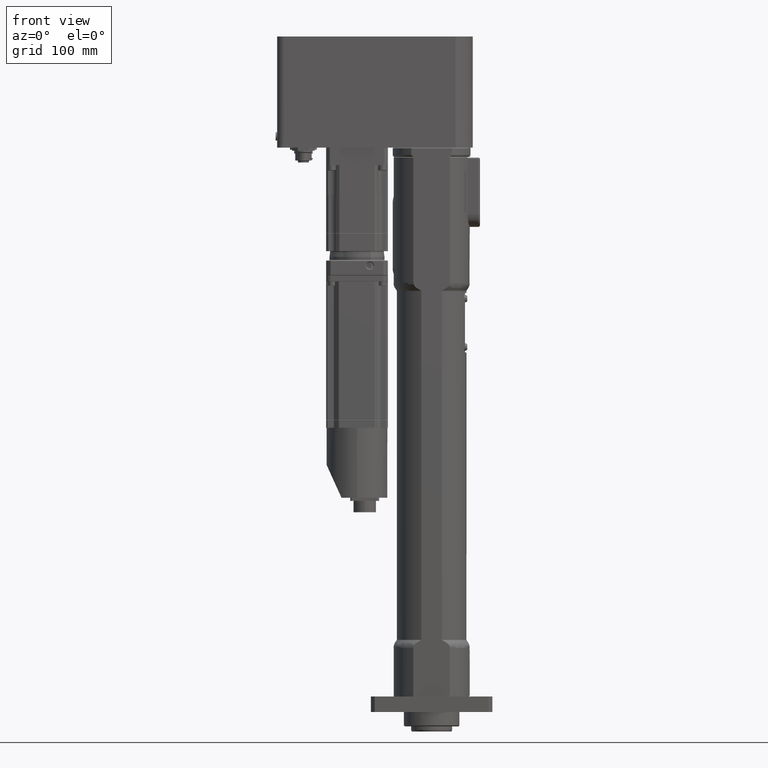
[diagram: clean part render]
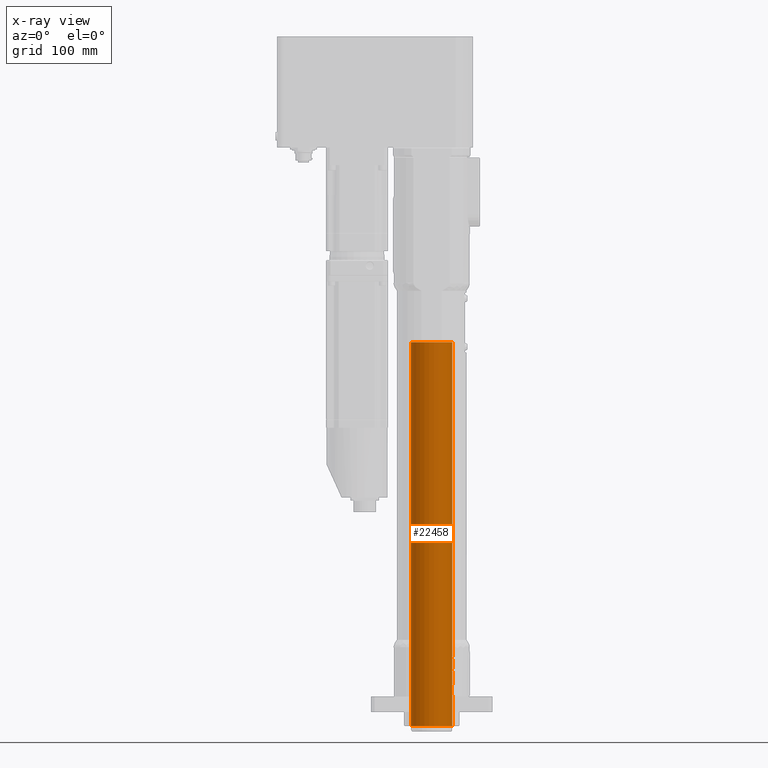
[diagram: x-ray — body ghosted, one internal face saturated and labeled with its STEP entity id]
A machine part, front view, then the same camera in x-ray: the body is ghosted and one INTERNAL B-rep face — a face not visible from any outside direction — is saturated and labeled: STEP entity #22458.
In plain terms, the highlighted cylindrical surface (bore or boss wall) has radius 20 mm, axis along (0, 0, 1).
Its self-contained STEP definition (entity closure, byte-faithful):
#640=B_SPLINE_CURVE_WITH_KNOTS('',3,(#31945,#31946,#31947,#31948,#31949,
#31950,#31951,#31952,#31953,#31954),.UNSPECIFIED.,.F.,.F.,(4,2,2,2,4),(0.,
0.0610897130723132,0.122179426144626,0.183269049775174,0.244358673405721),
 .UNSPECIFIED.);
#641=B_SPLINE_CURVE_WITH_KNOTS('',3,(#31956,#31957,#31958,#31959,#31960,
#31961,#31962,#31963,#31964,#31965),.UNSPECIFIED.,.F.,.F.,(4,2,2,2,4),(0.733076020217163,
0.794165643847711,0.855255267478258,0.916344980550571,0.977434693622885),
 .UNSPECIFIED.);
#642=B_SPLINE_CURVE_WITH_KNOTS('',3,(#31966,#31967,#31968,#31969,#31970,
#31971,#31972,#31973,#31974,#31975,#31976,#31977,#31978,#31979,#31980,#31981,
#31982,#31983),.UNSPECIFIED.,.F.,.F.,(4,2,2,2,2,2,2,2,4),(0.244358673405721,
0.305448297036269,0.366537920666816,0.427627633739129,0.488717346811442,
0.549807059883755,0.610896772956069,0.671986396586616,0.733076020217163),
 .UNSPECIFIED.);
#643=B_SPLINE_CURVE_WITH_KNOTS('',3,(#31992,#31993,#31994,#31995,#31996,
#31997,#31998,#31999,#32000,#32001),.UNSPECIFIED.,.F.,.F.,(4,2,2,2,4),(0.,
0.0610897130723132,0.122179426144626,0.183269049775174,0.244358673405721),
 .UNSPECIFIED.);
#644=B_SPLINE_CURVE_WITH_KNOTS('',3,(#32003,#32004,#32005,#32006,#32007,
#32008,#32009,#32010,#32011,#32012),.UNSPECIFIED.,.F.,.F.,(4,2,2,2,4),(0.733076020217164,
0.794165643847711,0.855255267478258,0.916344980550571,0.977434693622885),
 .UNSPECIFIED.);
#645=B_SPLINE_CURVE_WITH_KNOTS('',3,(#32013,#32014,#32015,#32016,#32017,
#32018,#32019,#32020,#32021,#32022,#32023,#32024,#32025,#32026,#32027,#32028,
#32029,#32030),.UNSPECIFIED.,.F.,.F.,(4,2,2,2,2,2,2,2,4),(0.244358673405721,
0.305448297036269,0.366537920666816,0.427627633739129,0.488717346811442,
0.549807059883756,0.610896772956069,0.671986396586616,0.733076020217164),
 .UNSPECIFIED.);
#1118=CYLINDRICAL_SURFACE('',#23881,20.);
#1440=CIRCLE('',#23882,20.);
#1441=CIRCLE('',#23883,20.);
#1442=CIRCLE('',#23884,20.);
#1443=CIRCLE('',#23885,20.);
#1444=CIRCLE('',#23886,20.);
#1445=CIRCLE('',#23887,20.);
#2361=FACE_OUTER_BOUND('',#3663,.T.);
#3663=EDGE_LOOP('',(#14068,#14069,#14070,#14071,#14072,#14073,#14074,#14075,
#14076,#14077,#14078,#14079,#14080,#14081,#14082,#14083,#14084,#14085,#14086,
#14087,#14088,#14089));
#5119=LINE('',#32036,#6901);
#5120=LINE('',#32040,#6902);
#5121=LINE('',#32043,#6903);
#5122=LINE('',#32044,#6904);
#5123=LINE('',#32046,#6905);
#5124=LINE('',#32051,#6906);
#6901=VECTOR('',#25997,20.);
#6902=VECTOR('',#26000,10.);
#6903=VECTOR('',#26003,20.);
#6904=VECTOR('',#26004,20.);
#6905=VECTOR('',#26005,20.);
#6906=VECTOR('',#26010,10.);
#8687=VERTEX_POINT('',#31942);
#8688=VERTEX_POINT('',#31944);
#8689=VERTEX_POINT('',#31955);
#8692=VERTEX_POINT('',#31989);
#8693=VERTEX_POINT('',#31991);
#8694=VERTEX_POINT('',#32002);
#8695=VERTEX_POINT('',#32033);
#8696=VERTEX_POINT('',#32035);
#8697=VERTEX_POINT('',#32037);
#8698=VERTEX_POINT('',#32039);
#8699=VERTEX_POINT('',#32041);
#8700=VERTEX_POINT('',#32045);
#8701=VERTEX_POINT('',#32048);
#8702=VERTEX_POINT('',#32050);
#10784=EDGE_CURVE('',#8688,#8687,#640,.T.);
#10785=EDGE_CURVE('',#8689,#8688,#641,.T.);
#10786=EDGE_CURVE('',#8687,#8689,#642,.T.);
#10790=EDGE_CURVE('',#8693,#8692,#643,.T.);
#10791=EDGE_CURVE('',#8694,#8693,#644,.T.);
#10792=EDGE_CURVE('',#8692,#8694,#645,.T.);
#10794=EDGE_CURVE('',#8695,#8695,#1440,.T.);
#10795=EDGE_CURVE('',#8695,#8696,#5119,.T.);
#10796=EDGE_CURVE('',#8697,#8696,#1441,.T.);
#10797=EDGE_CURVE('',#8698,#8697,#5120,.T.);
#10798=EDGE_CURVE('',#8699,#8698,#1442,.T.);
#10799=EDGE_CURVE('',#8699,#8694,#5121,.T.);
#10800=EDGE_CURVE('',#8692,#8689,#5122,.T.);
#10801=EDGE_CURVE('',#8687,#8700,#5123,.T.);
#10802=EDGE_CURVE('',#8700,#8700,#1443,.T.);
#10803=EDGE_CURVE('',#8701,#8699,#1444,.T.);
#10804=EDGE_CURVE('',#8702,#8701,#5124,.T.);
#10805=EDGE_CURVE('',#8696,#8702,#1445,.T.);
#14068=ORIENTED_EDGE('',*,*,#10794,.F.);
#14069=ORIENTED_EDGE('',*,*,#10795,.T.);
#14070=ORIENTED_EDGE('',*,*,#10796,.F.);
#14071=ORIENTED_EDGE('',*,*,#10797,.F.);
#14072=ORIENTED_EDGE('',*,*,#10798,.F.);
#14073=ORIENTED_EDGE('',*,*,#10799,.T.);
#14074=ORIENTED_EDGE('',*,*,#10791,.T.);
#14075=ORIENTED_EDGE('',*,*,#10790,.T.);
#14076=ORIENTED_EDGE('',*,*,#10800,.T.);
#14077=ORIENTED_EDGE('',*,*,#10785,.T.);
#14078=ORIENTED_EDGE('',*,*,#10784,.T.);
#14079=ORIENTED_EDGE('',*,*,#10801,.T.);
#14080=ORIENTED_EDGE('',*,*,#10802,.T.);
#14081=ORIENTED_EDGE('',*,*,#10801,.F.);
#14082=ORIENTED_EDGE('',*,*,#10786,.T.);
#14083=ORIENTED_EDGE('',*,*,#10800,.F.);
#14084=ORIENTED_EDGE('',*,*,#10792,.T.);
#14085=ORIENTED_EDGE('',*,*,#10799,.F.);
#14086=ORIENTED_EDGE('',*,*,#10803,.F.);
#14087=ORIENTED_EDGE('',*,*,#10804,.F.);
#14088=ORIENTED_EDGE('',*,*,#10805,.F.);
#14089=ORIENTED_EDGE('',*,*,#10795,.F.);
#22458=ADVANCED_FACE('',(#2361),#1118,.F.);
#23881=AXIS2_PLACEMENT_3D('',#32032,#25993,#25994);
#23882=AXIS2_PLACEMENT_3D('',#32034,#25995,#25996);
#23883=AXIS2_PLACEMENT_3D('',#32038,#25998,#25999);
#23884=AXIS2_PLACEMENT_3D('',#32042,#26001,#26002);
#23885=AXIS2_PLACEMENT_3D('',#32047,#26006,#26007);
#23886=AXIS2_PLACEMENT_3D('',#32049,#26008,#26009);
#23887=AXIS2_PLACEMENT_3D('',#32052,#26011,#26012);
#25993=DIRECTION('center_axis',(0.,0.,1.));
#25994=DIRECTION('ref_axis',(-1.,0.,0.));
#25995=DIRECTION('center_axis',(0.,0.,1.));
#25996=DIRECTION('ref_axis',(-1.,0.,0.));
#25997=DIRECTION('',(0.,0.,1.));
#25998=DIRECTION('center_axis',(0.,7.17765564207009E-17,-1.));
#25999=DIRECTION('ref_axis',(-1.,0.,0.));
#26000=DIRECTION('',(0.,0.,-1.));
#26001=DIRECTION('center_axis',(0.,3.24731666659712E-16,1.));
#26002=DIRECTION('ref_axis',(-1.,0.,0.));
#26003=DIRECTION('',(0.,0.,1.));
#26004=DIRECTION('',(0.,0.,1.));
#26005=DIRECTION('',(0.,0.,1.));
#26006=DIRECTION('center_axis',(0.,0.,1.));
#26007=DIRECTION('ref_axis',(-1.,0.,0.));
#26008=DIRECTION('center_axis',(0.,3.24731666659712E-16,1.));
#26009=DIRECTION('ref_axis',(-1.,0.,0.));
#26010=DIRECTION('',(0.,0.,1.));
#26011=DIRECTION('center_axis',(0.,7.17765564207009E-17,-1.));
#26012=DIRECTION('ref_axis',(-1.,0.,0.));
#31942=CARTESIAN_POINT('',(20.,-4.72159187915888E-17,54.121));
#31944=CARTESIAN_POINT('',(19.9342007364228,1.621,52.5));
#31945=CARTESIAN_POINT('Ctrl Pts',(19.9342007364228,1.621,52.5));
#31946=CARTESIAN_POINT('Ctrl Pts',(19.9342007364228,1.621,52.7036323769077));
#31947=CARTESIAN_POINT('Ctrl Pts',(19.9376422779811,1.58028572586809,52.9207766320505));
#31948=CARTESIAN_POINT('Ctrl Pts',(19.9500662017881,1.41482900197542,53.3201310063557));
#31949=CARTESIAN_POINT('Ctrl Pts',(19.9588684857962,1.29009144814773,53.502348736459));
#31950=CARTESIAN_POINT('Ctrl Pts',(19.9753864469583,1.00234894710185,53.7900912375049));
#31951=CARTESIAN_POINT('Ctrl Pts',(19.9841760998482,0.82013112383623,53.9148289545461));
#31952=CARTESIAN_POINT('Ctrl Pts',(19.9965711219685,0.420776441290678,54.0802858036578));
#31953=CARTESIAN_POINT('Ctrl Pts',(20.,0.203632078768491,54.121));
#31954=CARTESIAN_POINT('Ctrl Pts',(20.,-3.12250225675825E-16,54.121));
#31955=CARTESIAN_POINT('',(20.,1.27668850342666E-15,50.879));
#31956=CARTESIAN_POINT('Ctrl Pts',(20.,3.46944695195361E-16,50.879));
#31957=CARTESIAN_POINT('Ctrl Pts',(20.,0.203632078768492,50.879));
#31958=CARTESIAN_POINT('Ctrl Pts',(19.9965711219685,0.420776441290678,50.9197141963422));
#31959=CARTESIAN_POINT('Ctrl Pts',(19.9841760998482,0.82013112383623,51.0851710454539));
#31960=CARTESIAN_POINT('Ctrl Pts',(19.9753864469583,1.00234894710185,51.209908762495));
#31961=CARTESIAN_POINT('Ctrl Pts',(19.9588684857962,1.29009144814773,51.4976512635409));
#31962=CARTESIAN_POINT('Ctrl Pts',(19.9500662017881,1.41482900197542,51.6798689936443));
#31963=CARTESIAN_POINT('Ctrl Pts',(19.9376422779811,1.58028572586809,52.0792233679495));
#31964=CARTESIAN_POINT('Ctrl Pts',(19.9342007364228,1.621,52.2963676230923));
#31965=CARTESIAN_POINT('Ctrl Pts',(19.9342007364228,1.621,52.5));
#31966=CARTESIAN_POINT('Ctrl Pts',(20.,-1.73472347597681E-16,54.121));
#31967=CARTESIAN_POINT('Ctrl Pts',(20.,-0.203632078768491,54.121));
#31968=CARTESIAN_POINT('Ctrl Pts',(19.9965711219685,-0.420776441290678,
54.0802858036578));
#31969=CARTESIAN_POINT('Ctrl Pts',(19.9841760998482,-0.82013112383623,53.9148289545461));
#31970=CARTESIAN_POINT('Ctrl Pts',(19.9753864469583,-1.00234894710185,53.7900912375049));
#31971=CARTESIAN_POINT('Ctrl Pts',(19.9588684857962,-1.29009144814773,53.502348736459));
#31972=CARTESIAN_POINT('Ctrl Pts',(19.9500662017881,-1.41482900197542,53.3201310063557));
#31973=CARTESIAN_POINT('Ctrl Pts',(19.9376422779811,-1.58028572586809,52.9207766320505));
#31974=CARTESIAN_POINT('Ctrl Pts',(19.9342007364228,-1.621,52.7036323769077));
#31975=CARTESIAN_POINT('Ctrl Pts',(19.9342007364228,-1.621,52.2963676230923));
#31976=CARTESIAN_POINT('Ctrl Pts',(19.9376422779811,-1.58028572586809,52.0792233679495));
#31977=CARTESIAN_POINT('Ctrl Pts',(19.9500662017881,-1.41482900197542,51.6798689936443));
#31978=CARTESIAN_POINT('Ctrl Pts',(19.9588684857962,-1.29009144814773,51.4976512635409));
#31979=CARTESIAN_POINT('Ctrl Pts',(19.9753864469583,-1.00234894710185,51.209908762495));
#31980=CARTESIAN_POINT('Ctrl Pts',(19.9841760998482,-0.82013112383623,51.0851710454539));
#31981=CARTESIAN_POINT('Ctrl Pts',(19.9965711219685,-0.420776441290678,
50.9197141963422));
#31982=CARTESIAN_POINT('Ctrl Pts',(20.,-0.203632078768491,50.879));
#31983=CARTESIAN_POINT('Ctrl Pts',(20.,-1.38777878078145E-16,50.879));
#31989=CARTESIAN_POINT('',(20.,-3.17880499840864E-16,42.121));
#31991=CARTESIAN_POINT('',(19.9342007364228,1.621,40.5));
#31992=CARTESIAN_POINT('Ctrl Pts',(19.9342007364228,1.621,40.5));
#31993=CARTESIAN_POINT('Ctrl Pts',(19.9342007364228,1.621,40.7036323769077));
#31994=CARTESIAN_POINT('Ctrl Pts',(19.9376422779811,1.58028572586809,40.9207766320505));
#31995=CARTESIAN_POINT('Ctrl Pts',(19.9500662017881,1.41482900197542,41.3201310063557));
#31996=CARTESIAN_POINT('Ctrl Pts',(19.9588684857962,1.29009144814773,41.502348736459));
#31997=CARTESIAN_POINT('Ctrl Pts',(19.9753864469583,1.00234894710185,41.7900912375049));
#31998=CARTESIAN_POINT('Ctrl Pts',(19.9841760998482,0.820131123836241,41.9148289545461));
#31999=CARTESIAN_POINT('Ctrl Pts',(19.9965711219685,0.420776441290689,42.0802858036578));
#32000=CARTESIAN_POINT('Ctrl Pts',(20.,0.203632078768491,42.121));
#32001=CARTESIAN_POINT('Ctrl Pts',(20.,-1.90819582357449E-16,42.121));
#32002=CARTESIAN_POINT('',(20.,9.817855125106E-16,38.879));
#32003=CARTESIAN_POINT('Ctrl Pts',(20.,-2.77555756156289E-16,38.879));
#32004=CARTESIAN_POINT('Ctrl Pts',(20.,0.203632078768491,38.879));
#32005=CARTESIAN_POINT('Ctrl Pts',(19.9965711219685,0.420776441290678,38.9197141963422));
#32006=CARTESIAN_POINT('Ctrl Pts',(19.9841760998482,0.82013112383623,39.0851710454539));
#32007=CARTESIAN_POINT('Ctrl Pts',(19.9753864469583,1.00234894710185,39.2099087624951));
#32008=CARTESIAN_POINT('Ctrl Pts',(19.9588684857962,1.29009144814773,39.4976512635409));
#32009=CARTESIAN_POINT('Ctrl Pts',(19.9500662017881,1.41482900197542,39.6798689936443));
#32010=CARTESIAN_POINT('Ctrl Pts',(19.9376422779811,1.58028572586809,40.0792233679495));
#32011=CARTESIAN_POINT('Ctrl Pts',(19.9342007364228,1.621,40.2963676230923));
#32012=CARTESIAN_POINT('Ctrl Pts',(19.9342007364228,1.621,40.5));
#32013=CARTESIAN_POINT('Ctrl Pts',(20.,-3.46944695195361E-16,42.121));
#32014=CARTESIAN_POINT('Ctrl Pts',(20.,-0.203632078768492,42.121));
#32015=CARTESIAN_POINT('Ctrl Pts',(19.9965711219685,-0.420776441290678,
42.0802858036578));
#32016=CARTESIAN_POINT('Ctrl Pts',(19.9841760998482,-0.82013112383623,41.9148289545461));
#32017=CARTESIAN_POINT('Ctrl Pts',(19.9753864469583,-1.00234894710185,41.7900912375049));
#32018=CARTESIAN_POINT('Ctrl Pts',(19.9588684857962,-1.29009144814773,41.502348736459));
#32019=CARTESIAN_POINT('Ctrl Pts',(19.9500662017881,-1.41482900197542,41.3201310063557));
#32020=CARTESIAN_POINT('Ctrl Pts',(19.9376422779811,-1.58028572586809,40.9207766320505));
#32021=CARTESIAN_POINT('Ctrl Pts',(19.9342007364228,-1.621,40.7036323769077));
#32022=CARTESIAN_POINT('Ctrl Pts',(19.9342007364228,-1.621,40.2963676230923));
#32023=CARTESIAN_POINT('Ctrl Pts',(19.9376422779811,-1.58028572586809,40.0792233679495));
#32024=CARTESIAN_POINT('Ctrl Pts',(19.9500662017881,-1.41482900197542,39.6798689936443));
#32025=CARTESIAN_POINT('Ctrl Pts',(19.9588684857962,-1.29009144814773,39.4976512635409));
#32026=CARTESIAN_POINT('Ctrl Pts',(19.9753864469583,-1.00234894710185,39.2099087624951));
#32027=CARTESIAN_POINT('Ctrl Pts',(19.9841760998482,-0.82013112383623,39.0851710454539));
#32028=CARTESIAN_POINT('Ctrl Pts',(19.9965711219685,-0.420776441290678,
38.9197141963422));
#32029=CARTESIAN_POINT('Ctrl Pts',(20.,-0.203632078768491,38.879));
#32030=CARTESIAN_POINT('Ctrl Pts',(20.,2.08166817117217E-16,38.879));
#32032=CARTESIAN_POINT('Origin',(0.,0.,-14.));
#32033=CARTESIAN_POINT('',(20.,2.44929359829471E-15,-14.));
#32034=CARTESIAN_POINT('Origin',(0.,0.,-14.));
#32035=CARTESIAN_POINT('',(20.,2.44929359829471E-15,16.5));
#32036=CARTESIAN_POINT('',(20.,2.44929359829471E-15,-14.));
#32037=CARTESIAN_POINT('',(19.7737199332852,3.,16.5));
#32038=CARTESIAN_POINT('Origin',(0.,0.,16.5));
#32039=CARTESIAN_POINT('',(19.7737199332852,3.,26.5));
#32040=CARTESIAN_POINT('',(19.7737199332852,3.,-14.));
#32041=CARTESIAN_POINT('',(20.,2.44929359829471E-15,26.5));
#32042=CARTESIAN_POINT('Origin',(0.,0.,26.5));
#32043=CARTESIAN_POINT('',(20.,2.44929359829471E-15,-14.));
#32044=CARTESIAN_POINT('',(20.,2.44929359829471E-15,-14.));
#32045=CARTESIAN_POINT('',(20.,2.44929359829471E-15,359.));
#32046=CARTESIAN_POINT('',(20.,2.44929359829471E-15,-14.));
#32047=CARTESIAN_POINT('Origin',(0.,0.,359.));
#32048=CARTESIAN_POINT('',(19.7737199332852,-3.,26.5));
#32049=CARTESIAN_POINT('Origin',(0.,0.,26.5));
#32050=CARTESIAN_POINT('',(19.7737199332852,-3.,16.5));
#32051=CARTESIAN_POINT('',(19.7737199332852,-3.,-14.));
#32052=CARTESIAN_POINT('Origin',(0.,0.,16.5));